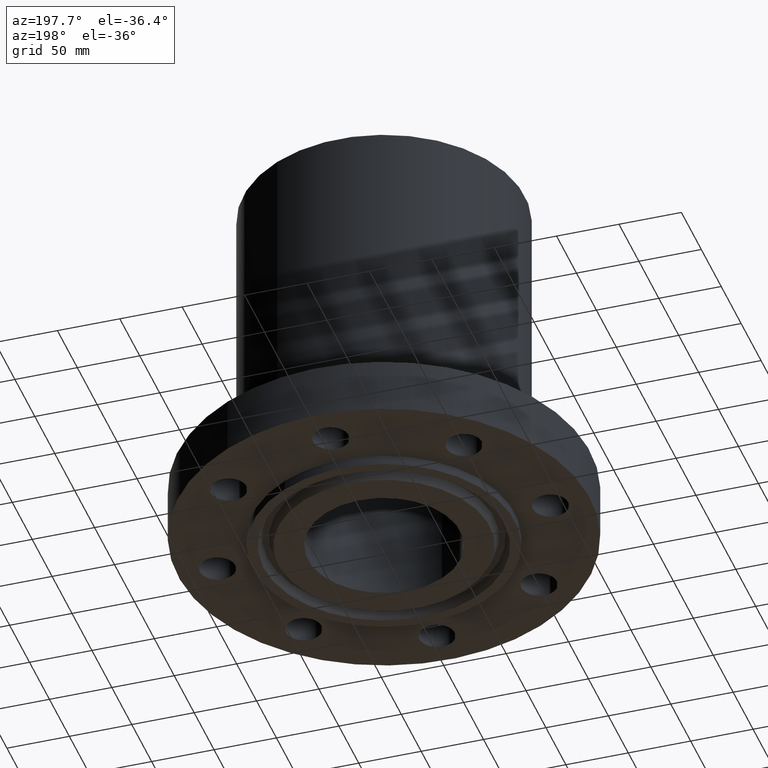
[diagram: clean part render]
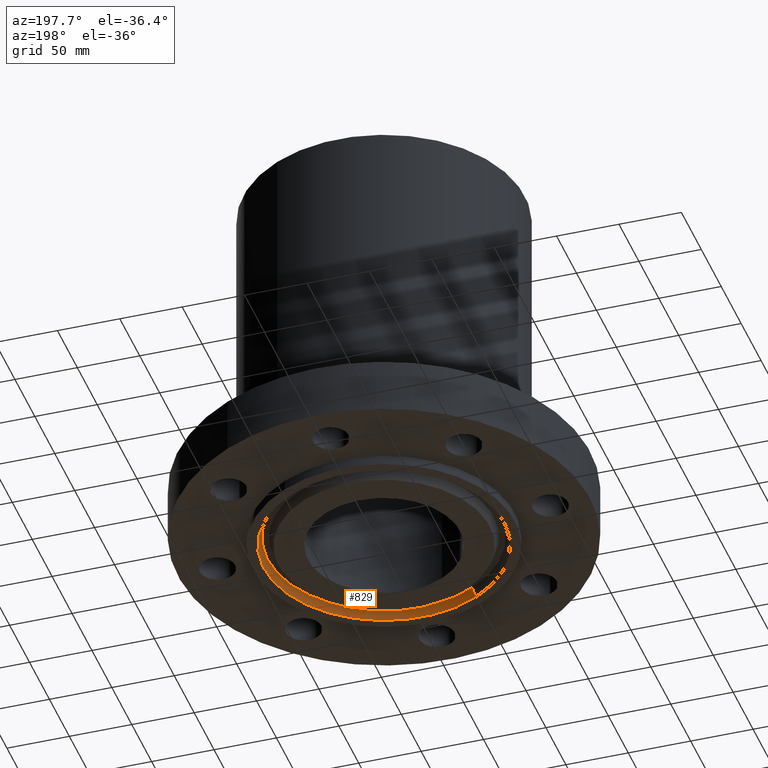
[diagram: same view with one face highlighted and labeled with its STEP entity id]
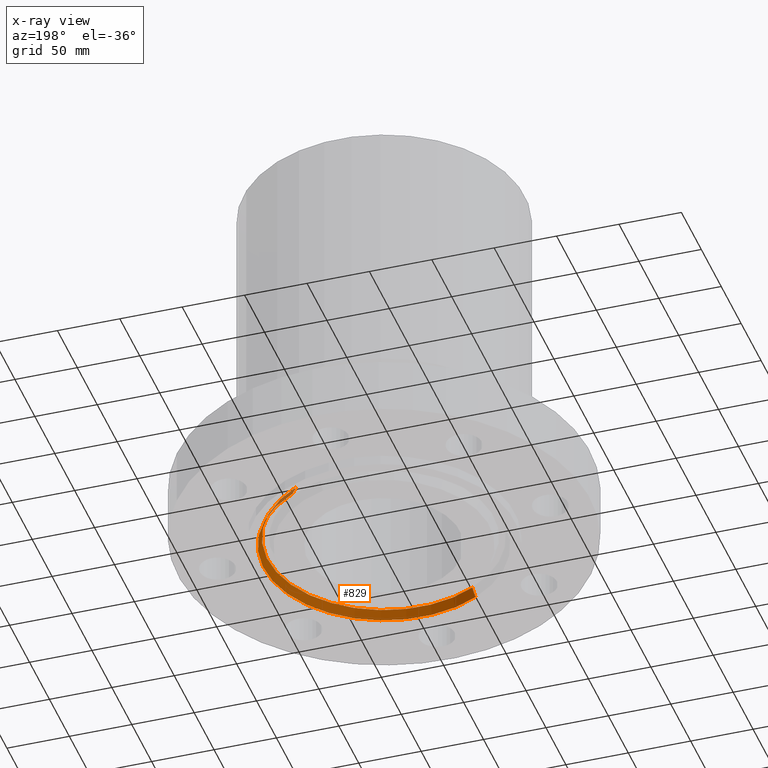
[diagram: x-ray of the same camera — body ghosted, the highlighted face saturated]
A machine part, auxiliary view. The second image highlights one B-rep face of the part: STEP entity #829.
The next image is the same camera in x-ray: the body ghosted, the highlighted face saturated — about 0% of this face is hidden behind the body in this view.
In plain terms, the highlighted conical surface has half-angle 23 deg.
Its self-contained STEP definition (entity closure, byte-faithful):
#777=AXIS2_PLACEMENT_3D('Circle Axis2P3D',#775,#776,$) ;
#790=AXIS2_PLACEMENT_3D('Cone Axis2P3D',#787,#788,#789) ;
#820=AXIS2_PLACEMENT_3D('Circle Axis2P3D',#818,#819,$) ;
#753=CARTESIAN_POINT('Vertex',(-1.76052564649,-3.22262057967,-0.0188873350169)) ;
#760=CARTESIAN_POINT('Vertex',(1.76052564649,3.22262057967,-0.0188873350169)) ;
#775=CARTESIAN_POINT('Axis2P3D Location',(0.,0.,-0.0188873350169)) ;
#787=CARTESIAN_POINT('Axis2P3D Location',(0.,0.,-0.0188873350169)) ;
#792=CARTESIAN_POINT('Line Origine',(-1.79045220829,-3.27740078359,-0.165943667509)) ;
#796=CARTESIAN_POINT('Vertex',(-1.82037877009,-3.33218098751,-0.313000000001)) ;
#803=CARTESIAN_POINT('Vertex',(1.82037877009,3.33218098751,-0.313000000001)) ;
#806=CARTESIAN_POINT('Line Origine',(1.79045220829,3.27740078359,-0.165943667509)) ;
#818=CARTESIAN_POINT('Axis2P3D Location',(0.,0.,-0.313000000001)) ;
#776=DIRECTION('Axis2P3D Direction',(0.,0.,-0.0393700787402)) ;
#788=DIRECTION('Axis2P3D Direction',(0.,0.,-0.0393700787402)) ;
#789=DIRECTION('Axis2P3D XDirection',(0.0188750212049,0.0345504945626,0.)) ;
#793=DIRECTION('Vector Direction',(-0.00737505833565,-0.0134999537303,-0.0362403485611)) ;
#807=DIRECTION('Vector Direction',(0.00737505833565,0.0134999537303,-0.0362403485611)) ;
#819=DIRECTION('Axis2P3D Direction',(0.,0.,-0.0393700787402)) ;
#794=VECTOR('Line Direction',#793,0.0393700787402) ;
#808=VECTOR('Line Direction',#807,0.0393700787402) ;
#824=ORIENTED_EDGE('',*,*,#779,.F.) ;
#825=ORIENTED_EDGE('',*,*,#810,.T.) ;
#826=ORIENTED_EDGE('',*,*,#822,.T.) ;
#827=ORIENTED_EDGE('',*,*,#798,.F.) ;
#829=ADVANCED_FACE('PartBody',(#828),#791,.F.) ;
#778=CIRCLE('generated circle',#777,3.6721565806) ;
#821=CIRCLE('generated circle',#820,3.79700000002) ;
#791=CONICAL_SURFACE('Cone',#790,3.6721565806,0.401425727959) ;
#779=EDGE_CURVE('',#761,#754,#778,.T.) ;
#798=EDGE_CURVE('',#754,#797,#795,.T.) ;
#810=EDGE_CURVE('',#761,#804,#809,.T.) ;
#822=EDGE_CURVE('',#804,#797,#821,.T.) ;
#823=EDGE_LOOP('',(#824,#825,#826,#827)) ;
#828=FACE_OUTER_BOUND('',#823,.T.) ;
#795=LINE('Line',#792,#794) ;
#809=LINE('Line',#806,#808) ;
#754=VERTEX_POINT('',#753) ;
#761=VERTEX_POINT('',#760) ;
#797=VERTEX_POINT('',#796) ;
#804=VERTEX_POINT('',#803) ;